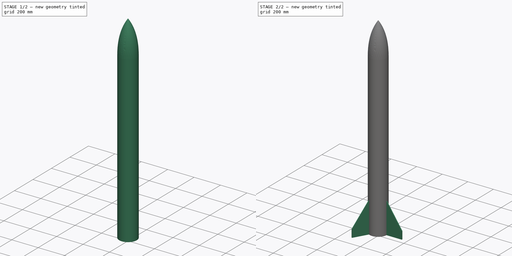
[diagram: build sequence overview — one tinted view per stage of 2, left to right]
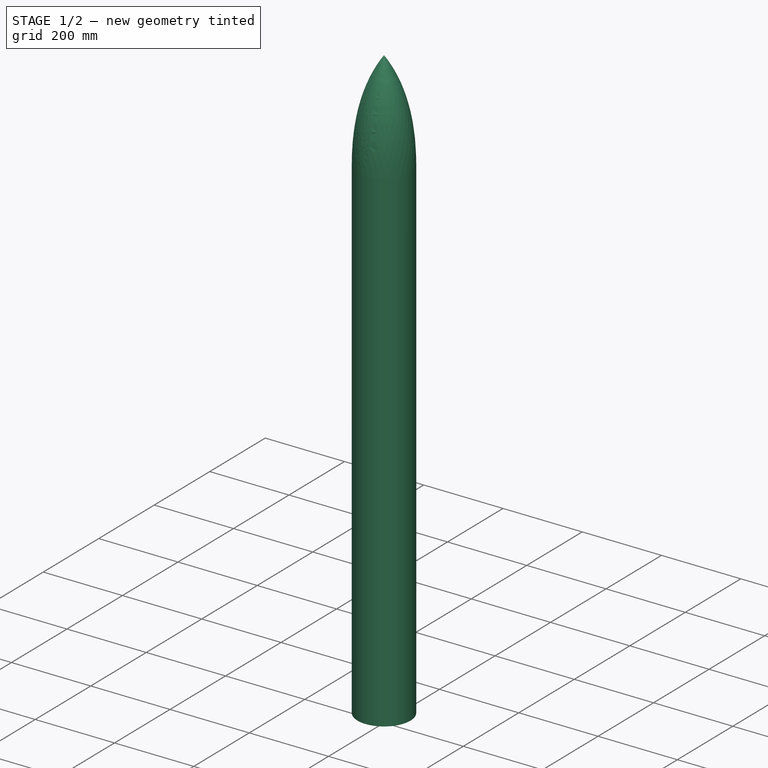
[diagram: stage 1 of 2 — iso view after this stage's code; geometry added in this stage tinted green]
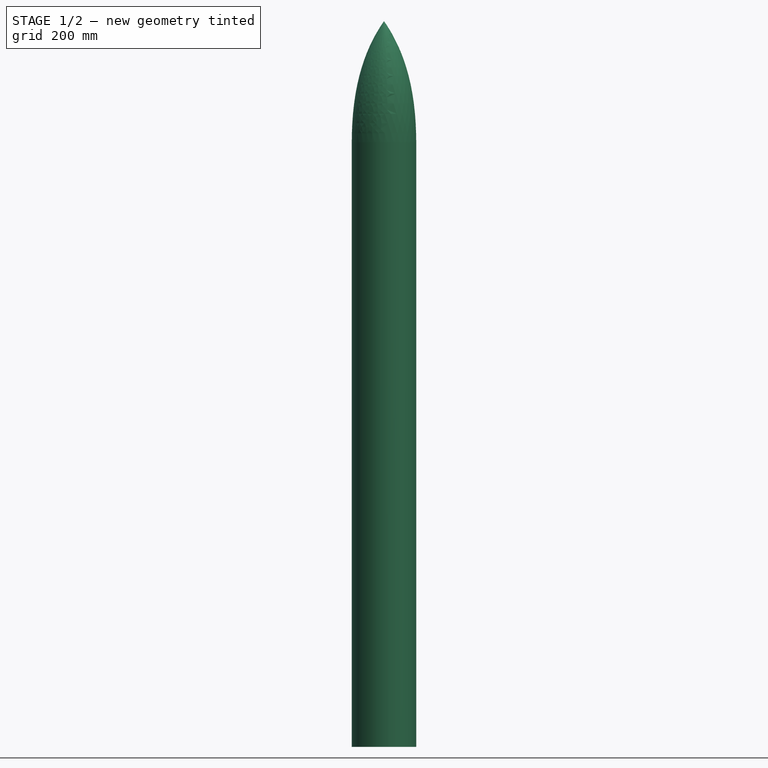
[diagram: stage 1 of 2 — front view after this stage's code; geometry added in this stage tinted green]
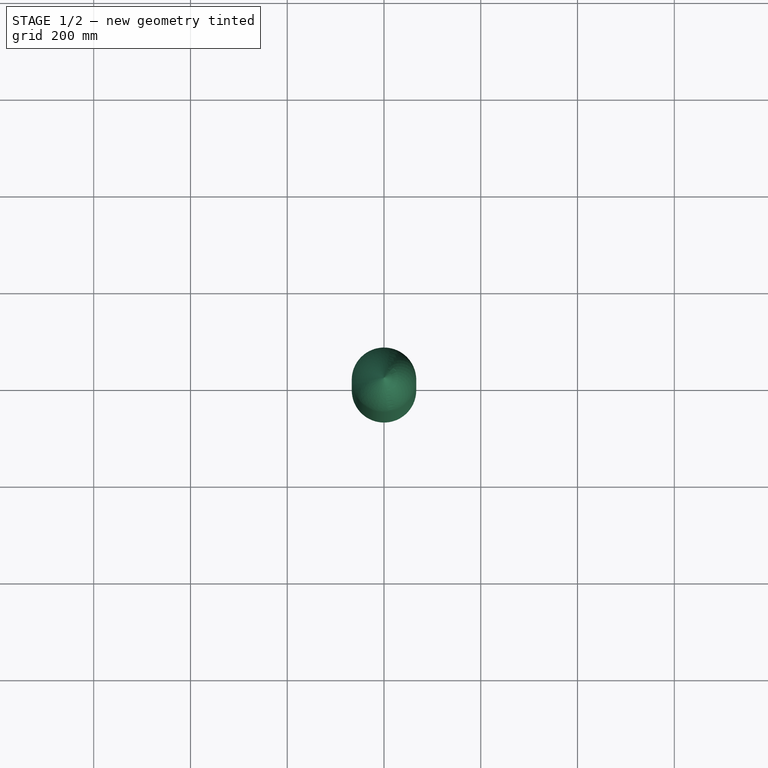
[diagram: stage 1 of 2 — top view after this stage's code; geometry added in this stage tinted green]
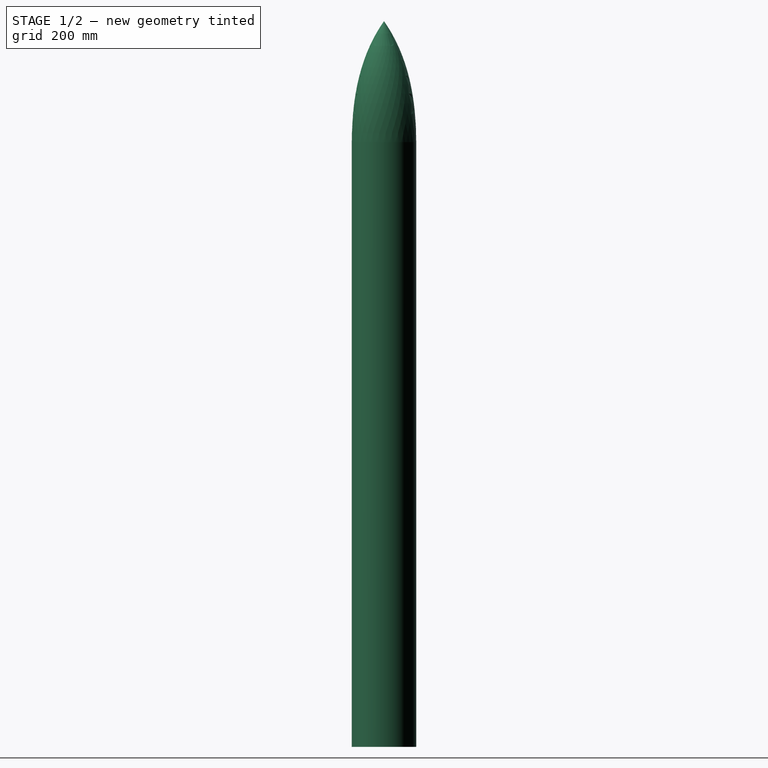
[diagram: stage 1 of 2 — right view after this stage's code; geometry added in this stage tinted green]
FCSTD DOCUMENT  (FreeCAD 0.19R24267 +148 (Git))
Label: Aeroshell
License: All rights reserved
LicenseURL: http://en.wikipedia.org/wiki/All_rights_reserved
objects: Sketcher::SketchObject×3, PartDesign::Pad×2, PartDesign::Revolution×1, PartDesign::PolarPattern×1, PartDesign::Body×1
note: 11 computed .brp shape members not serialized (recipe doc carries the construction recipe); baked Part::Feature solids carry a one-line shape summary decoded from their .brp

FEATURE [Sketcher::SketchObject] Sketch
  FullyConstrained = true
  MapMode = 5
  Support = -> [XY_Plane]
  sketch-geometry (1):
    g0: Circle CenterX=0 CenterY=0 CenterZ=0 NormalX=0 NormalY=0 NormalZ=1 AngleXU=0 Radius=66.6
  constraints (2):
    c: Coincident(g0,g-1)
    c: Radius(g0) = 66.6
FEATURE [PartDesign::Pad] Pad
  Direction = (1,1,1)
  Length = 1250
  Length2 = 100
  Profile = -> Sketch
  Type = 0
FEATURE [Sketcher::SketchObject] Sketch001
  FullyConstrained = true
  MapMode = 5
  Placement = pos=(0,0,0) rot=(1,0,0;1.5708rad)
  Support = -> [XZ_Plane]
  sketch-geometry (9):
    g0: LineSegment StartX=0 StartY=1500 StartZ=0 EndX=0 EndY=1250 EndZ=0
    g1-g4: Circle x4 (B-spline internal-alignment scaffolding for g5; pole/knot coordinates omitted)
    g5: BSplineCurve PolesCount=4 KnotsCount=2 Degree=3 IsPeriodic=0
    g6: GeomPoint X=0 Y=1500 Z=0
    g7: GeomPoint X=-66.6 Y=1250 Z=0
    g8: LineSegment StartX=0 StartY=1250 StartZ=0 EndX=-66.6 EndY=1250 EndZ=0
  constraints (20):
    c: Vertical(g0)
    c: PointOnObject(g0,g-2)
    c: DistanceY(g0) = 1250
    c: DistanceY(g0,g0) = 250
    c: Coincident(g5,g0)
    c: Weight(g1) = 1
    c: Equal(g1,g2)
    c: Equal(g1,g3)
    c: Equal(g1,g4)
    c: InternalAlignment(g1-g4 -> g5) x4
    c: InternalAlignment(g6,g5)
    c: InternalAlignment(g7,g5)
    c: Coincident(g8,g0)
    c: Coincident(g8,g5)
    c: Horizontal(g8)
    c: DistanceX(g8,g8) = 66.6
    c: Vertical(g3,g5)
    c: DistanceY(g5,g3) = 125
    c: DistanceY(g3,g2) = 75
    c: DistanceX(g2,g0) = 35
FEATURE [PartDesign::Revolution] Revolution
  Angle = 360
  Axis = (-3e-16,3e-16,1)
  Base = (0,0,0)
  BaseFeature = -> Pad
  Profile = -> Sketch001
  ReferenceAxis = -> Z_Axis
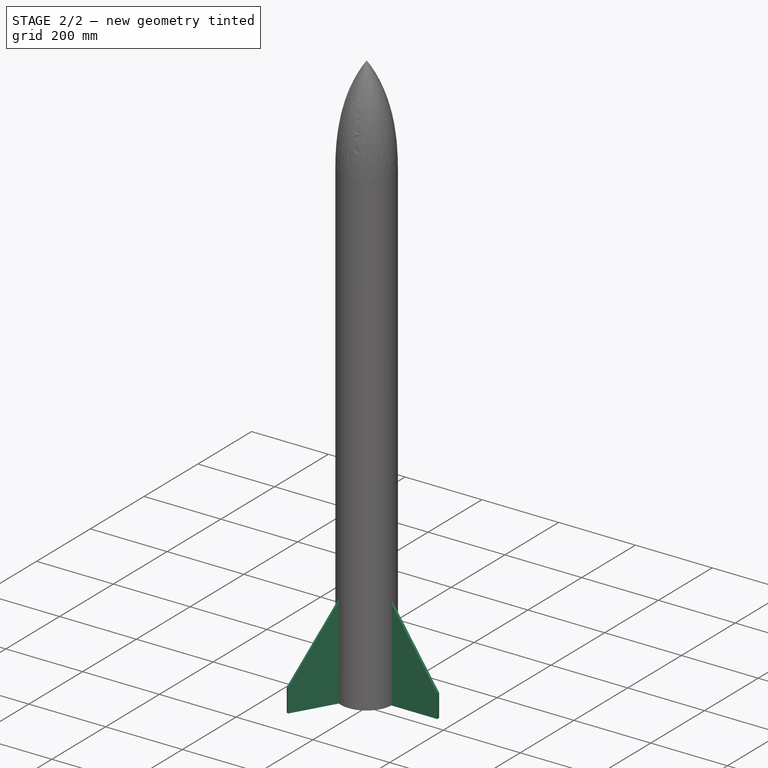
[diagram: stage 2 of 2 — iso view after this stage's code; geometry added in this stage tinted green]
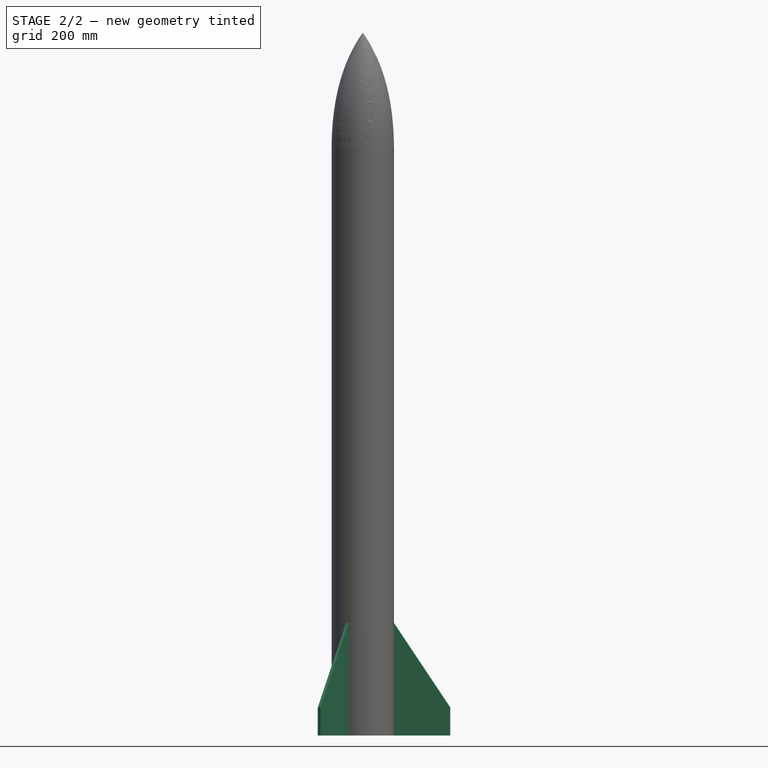
[diagram: stage 2 of 2 — front view after this stage's code; geometry added in this stage tinted green]
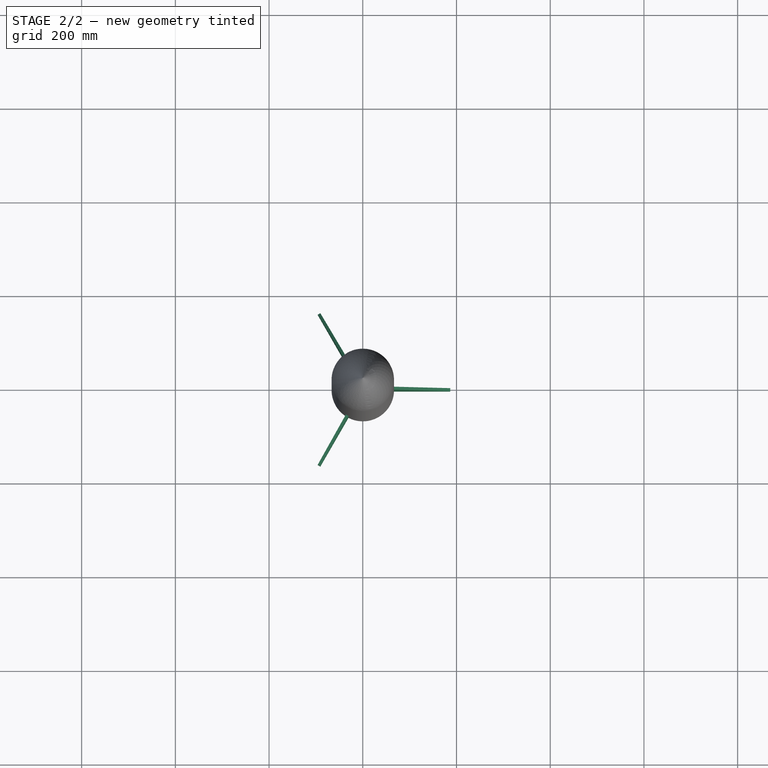
[diagram: stage 2 of 2 — top view after this stage's code; geometry added in this stage tinted green]
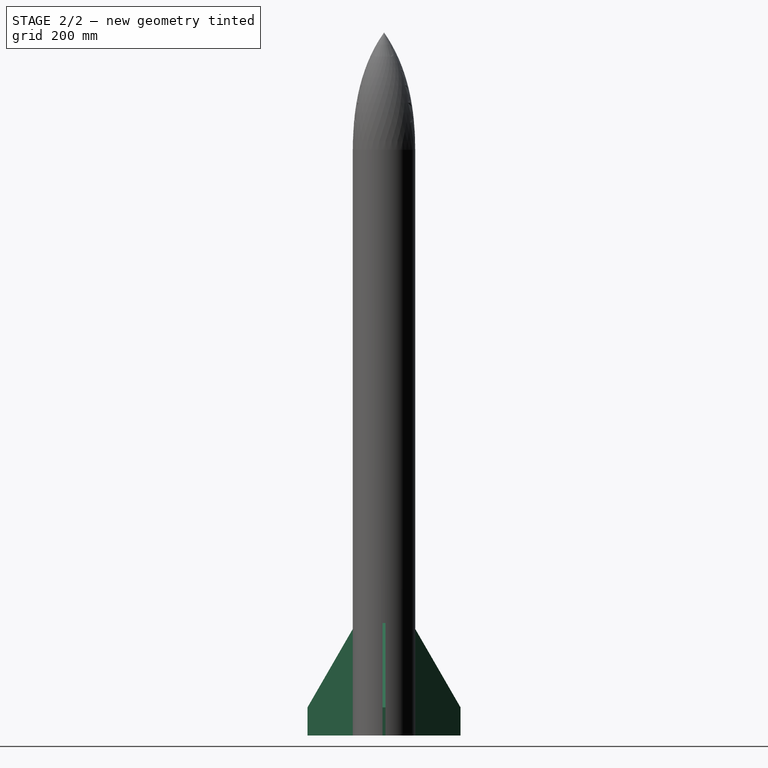
[diagram: stage 2 of 2 — right view after this stage's code; geometry added in this stage tinted green]
FEATURE [Sketcher::SketchObject] Sketch002
  ExternalGeometry = -> [Revolution]
  FullyConstrained = true
  MapMode = 5
  Placement = pos=(0,0,0) rot=(1,0,0;1.5708rad)
  Support = -> [XZ_Plane]
  sketch-geometry (6):
    g0: LineSegment StartX=66.6 StartY=240 StartZ=0 EndX=186.6 EndY=60 EndZ=0
    g1: LineSegment StartX=186.6 StartY=60 StartZ=0 EndX=186.6 EndY=0 EndZ=0
    g2: LineSegment StartX=66.6 StartY=0 StartZ=0 EndX=186.6 EndY=0 EndZ=0
    g3: LineSegment StartX=66.6 StartY=0 StartZ=0 EndX=1.42e-14 EndY=0 EndZ=0
    g4: LineSegment StartX=66.6 StartY=240 StartZ=0 EndX=1.42e-14 EndY=240 EndZ=0
    g5: LineSegment StartX=1.42e-14 StartY=240 StartZ=0 EndX=1.42e-14 EndY=0 EndZ=0
  constraints (16):
    c: PointOnObject(g0,g-3)
    c: Coincident(g1,g0)
    c: Vertical(g1)
    c: Coincident(g2,g-3)
    c: Coincident(g2,g1)
    c: Horizontal(g2)
    c: DistanceY(g2,g0) = 240
    c: DistanceY(g1,g1) = 60
    c: DistanceX(g2,g2) = 120
    c: Coincident(g3,g2)
    c: Coincident(g3,g-1)
    c: Coincident(g4,g0)
    c: Horizontal(g4)
    c: Coincident(g5,g4)
    c: Coincident(g5,g3)
    c: Vertical(g5)
FEATURE [PartDesign::Pad] Pad001
  BaseFeature = -> Revolution
  Direction = (1,1,1)
  Length = 6.37
  Length2 = 100
  Midplane = true
  Profile = -> Sketch002
  Type = 0
FEATURE [PartDesign::PolarPattern] PolarPattern
  Angle = 360
  Axis = -> Z_Axis
  BaseFeature = -> Pad001
  Occurrences = 3
  Originals = -> [Pad001]
FEATURE [PartDesign::Body] Body
  Group = -> [Sketch,Pad,Sketch001,Revolution,Sketch002,Pad001,PolarPattern]
  Origin = -> Origin
  Tip = -> PolarPattern
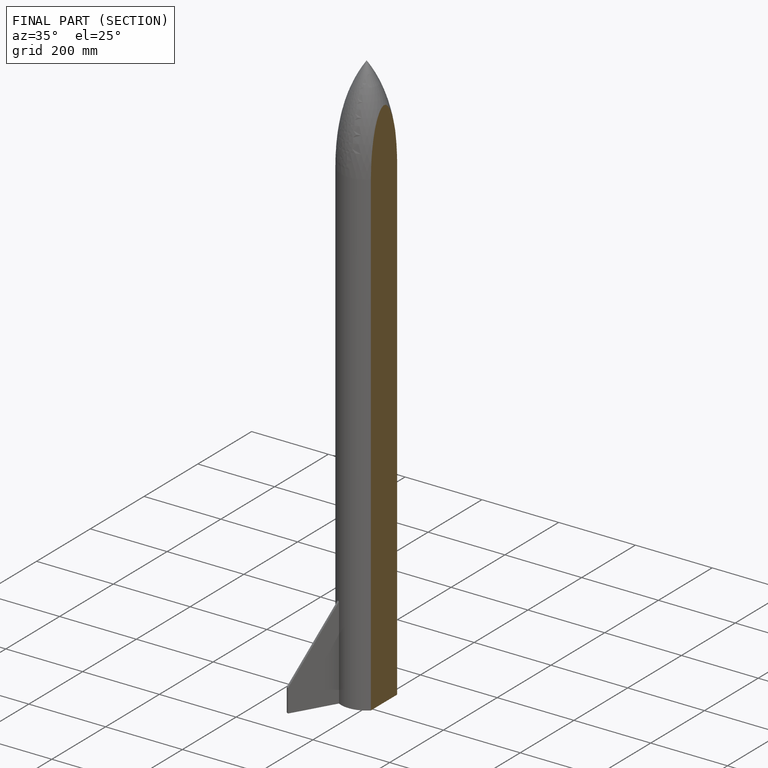
[diagram: finished part — half-section view (interior)]
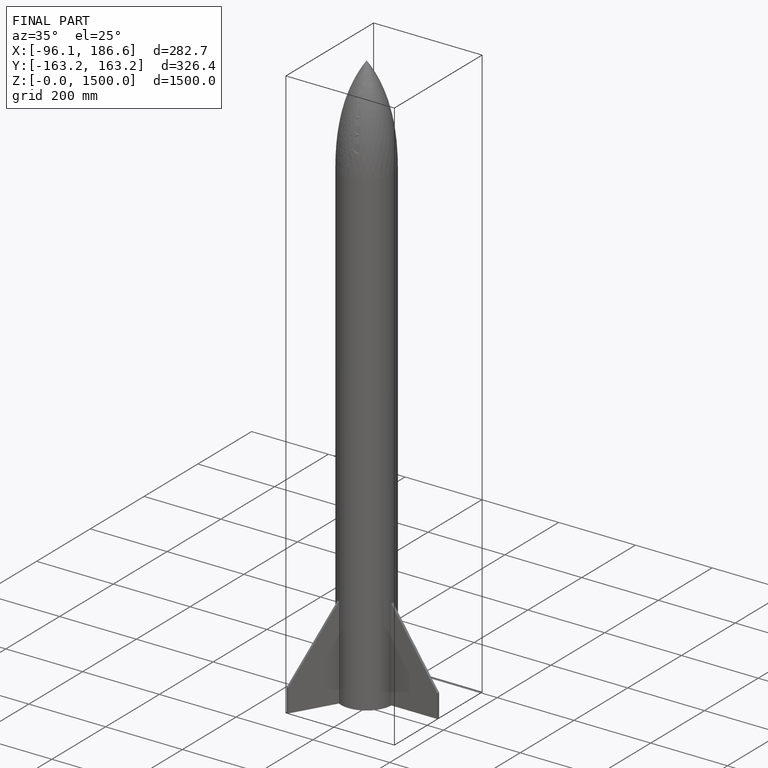
[diagram: finished part — iso view with bounding-box wireframe]
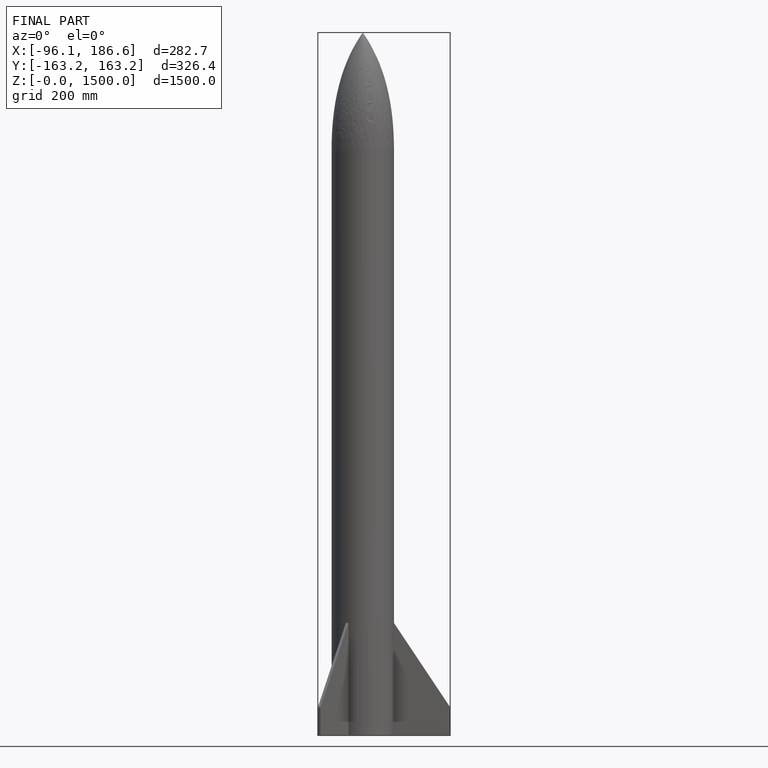
[diagram: finished part — front view with bounding-box wireframe]
